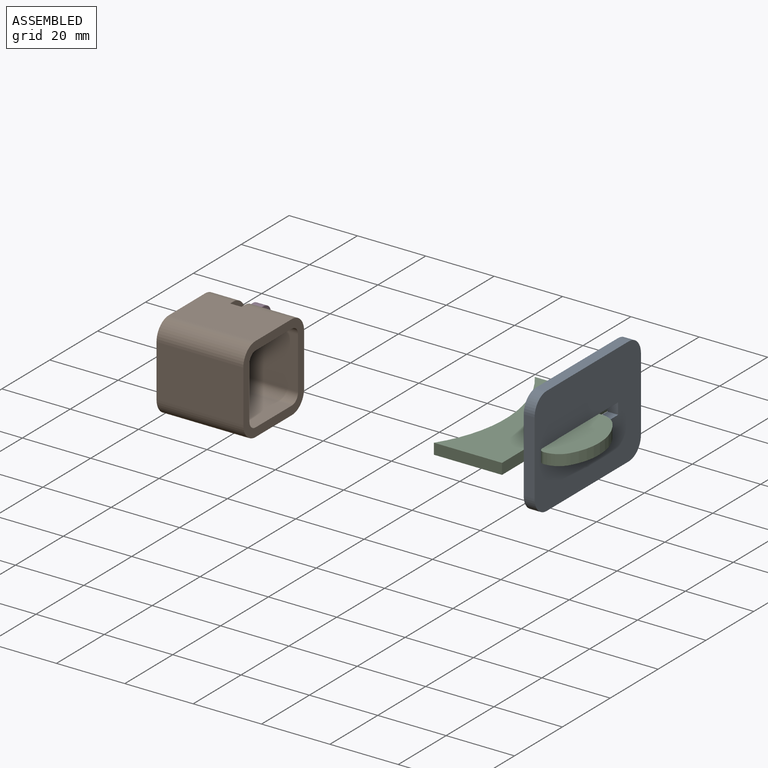
[diagram: assembled view]
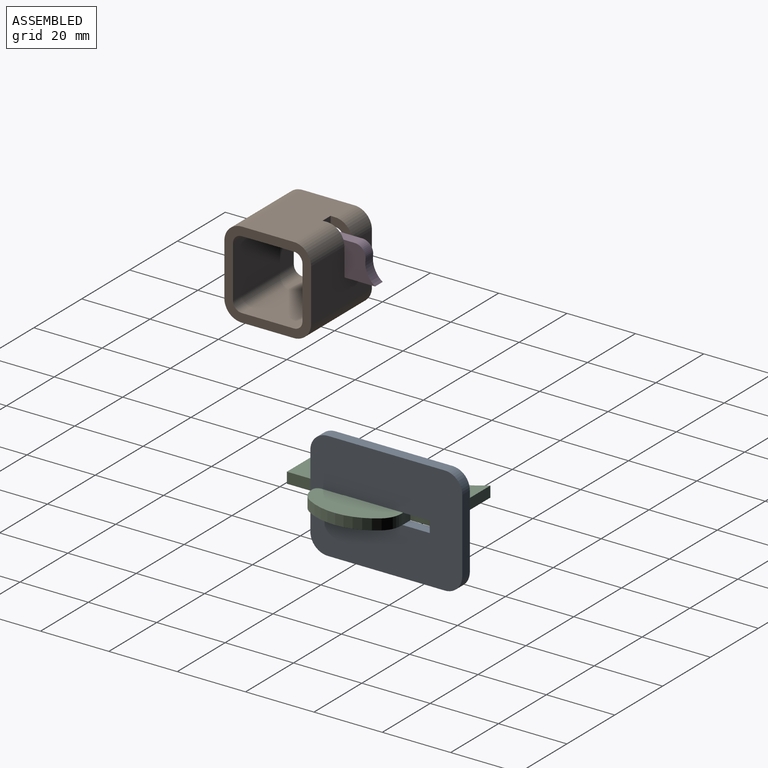
[diagram: assembled view, second angle]
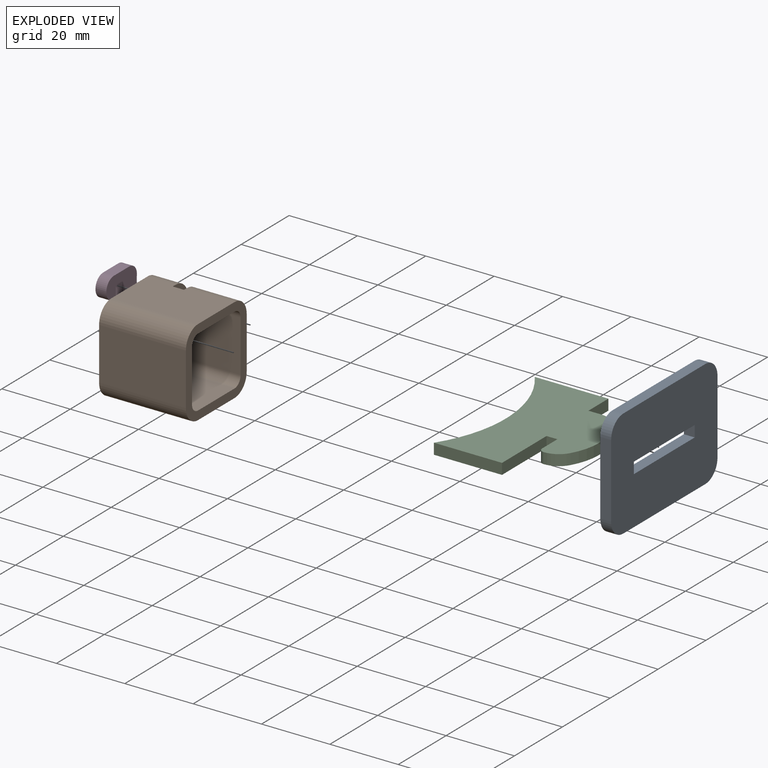
[diagram: exploded view]
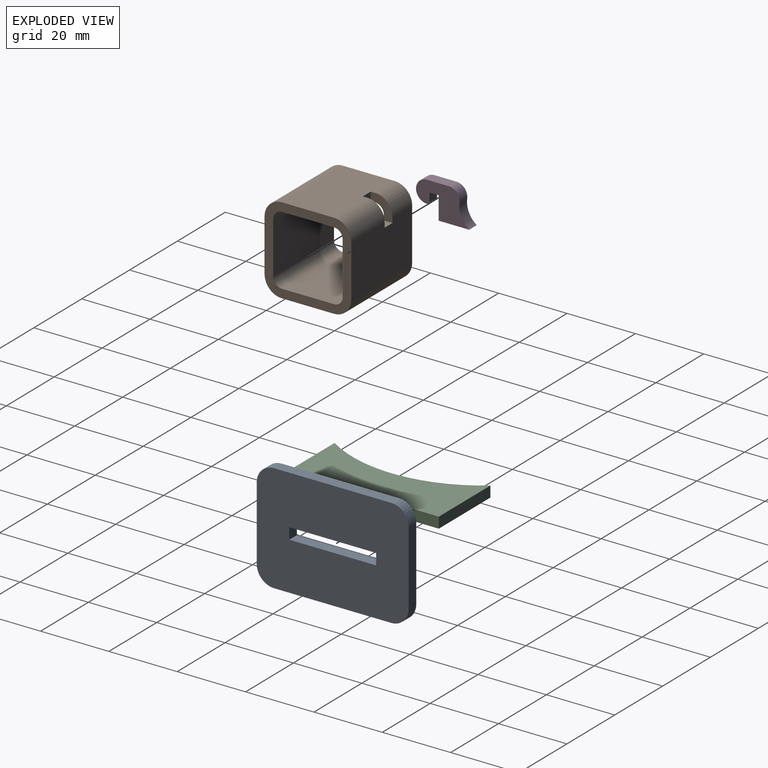
[diagram: exploded view, second angle]
ASSEMBLY  parts=4 mates=2
PART A: 14 faces, bbox 3.2x44.5x31.8 mm
  f0: plane 34.29x3.18mm, normal (0,0,-1), area 108.9mm2, adj f8,f9,f10,f13
  f1: plane 21.59x3.18mm, normal (0,1,0), area 68.5mm2, adj f8,f9,f10,f11
  f2: plane 34.29x3.18mm, normal (0,0,1), area 108.9mm2, adj f8,f9,f11,f12
  f3: plane 3.3x3.18mm, normal (0,-1,0), area 10.5mm2, adj f4,f6,f8,f9
  f4: plane 25.4x3.18mm, normal (0,0,1), area 80.6mm2, adj f3,f5,f8,f9
  f5: plane 3.3x3.18mm, normal (0,1,0), area 10.5mm2, adj f4,f6,f8,f9
  f6: plane 25.4x3.18mm, normal (0,0,-1), area 80.6mm2, adj f3,f5,f8,f9
  f7: plane 21.59x3.18mm, normal (0,-1,0), area 68.5mm2, adj f8,f9,f12,f13
  f8: plane 44.45x31.75mm, normal (1,0,0), area 1305.3mm2, adj f0,f1,f2,f3,f4,f5,f6,f7
  f9: plane 44.45x31.75mm, normal (-1,0,0), area 1305.3mm2, adj f0,f1,f2,f3,f4,f5,f6,f7
  f10: cylinder r=5.08mm len=5.08mm, axis (1,0,0), area 25.3mm2, adj f0,f1,f8,f9
  f11: cylinder r=5.08mm len=5.08mm, axis (-1,0,0), area 25.3mm2, adj f1,f2,f8,f9
  f12: cylinder r=5.08mm len=5.08mm, axis (1,0,0), area 25.3mm2, adj f2,f7,f8,f9
  f13: cylinder r=5.08mm len=5.08mm, axis (-1,0,0), area 25.3mm2, adj f0,f7,f8,f9
PART B: 24 faces, bbox 25.4x25.4x25.4 mm
  f0: plane 25.4x15.24mm, normal (1,0,0), area 382.9mm2, adj f5,f10,f11,f16,f17,f20,f22,f23
  f1: plane 25.4x15.24mm, normal (0,-1,0), area 382.1mm2, adj f5,f10,f11,f17,f18,f21,f22,f23
  f2: plane 25.4x15.24mm, normal (-1,0,0), area 382.9mm2, adj f4,f10,f11,f12,f15,f20,f22,f23
  f3: plane 25.4x15.24mm, normal (0,1,0), area 382.1mm2, adj f4,f10,f11,f14,f15,f21,f22,f23
  f4: cylinder r=5.08mm len=13.88mm, axis (0,0,-1), area 110.8mm2, adj f2,f3,f10,f22
  f5: cylinder r=2.54mm len=13.88mm, axis (0,0,1), area 55.4mm2, adj f0,f1,f10,f22
  f6: plane 25.4x15.24mm, normal (0,1,0), area 387.1mm2, adj f10,f11,f16,f19
  f7: plane 25.4x15.24mm, normal (0,-1,0), area 387.1mm2, adj f10,f11,f12,f13
  f8: plane 25.4x15.24mm, normal (1,0,0), area 387.1mm2, adj f10,f11,f13,f14
  f9: plane 25.4x15.24mm, normal (-1,0,0), area 387.1mm2, adj f10,f11,f18,f19
  f10: plane 25.4x25.4mm, normal (0,0,1), area 215.6mm2, adj f0,f1,f2,f3,f4,f5,f6,f7
  f11: plane 25.4x25.4mm, normal (0,0,-1), area 215.6mm2, adj f0,f1,f2,f3,f6,f7,f8,f9
  f12: cylinder r=5.08mm len=25.4mm, axis (0,0,1), area 202.7mm2, adj f2,f7,f10,f11
  f13: cylinder r=5.08mm len=25.4mm, axis (0,0,-1), area 202.7mm2, adj f7,f8,f10,f11
  f14: cylinder r=5.08mm len=25.4mm, axis (0,0,1), area 202.7mm2, adj f3,f8,f10,f11
  f15: cylinder r=5.08mm len=8.21mm, axis (0,0,-1), area 65.5mm2, adj f2,f3,f11,f23
  f16: cylinder r=2.54mm len=25.4mm, axis (0,0,-1), area 101.3mm2, adj f0,f6,f10,f11
  f17: cylinder r=2.54mm len=8.21mm, axis (0,0,1), area 32.8mm2, adj f0,f1,f11,f23
  f18: cylinder r=2.54mm len=25.4mm, axis (0,0,-1), area 101.3mm2, adj f1,f9,f10,f11
  f19: cylinder r=2.54mm len=25.4mm, axis (0,0,1), area 101.3mm2, adj f6,f9,f10,f11
  f20: plane 3.3x2.54mm, normal (0,1,0), area 8.4mm2, adj f0,f2,f22,f23
  f21: plane 3.3x2.54mm, normal (-1,0,0), area 8.4mm2, adj f1,f3,f22,f23
  f22: plane 6.6x6.35mm, normal (0,0,-1), area 22.3mm2, adj f0,f1,f2,f3,f4,f5,f20,f21
  f23: plane 6.6x6.35mm, normal (0,0,1), area 22.3mm2, adj f0,f1,f2,f3,f15,f17,f20,f21
PART C: 15 faces, bbox 34.1x44.5x3.2 mm
  f0: plane 8.32x3.18mm, normal (1,0,0), area 26.4mm2, adj f1,f12,f13,f14
  f1: plane 21.55x3.18mm, normal (0,1,0), area 68.4mm2, adj f0,f2,f13,f14
  f2: cylinder r=38.56mm len=44.45mm, axis (0,0,-1), area 150.5mm2, adj f1,f3,f13,f14
  f3: plane 19.93x3.18mm, normal (0,-1,0), area 63.3mm2, adj f2,f4,f13,f14
  f4: plane 18.6x3.18mm, normal (1,0,0), area 59.1mm2, adj f3,f5,f13,f14
  f5: plane 3.18x3.18mm, normal (0,-1,0), area 10.1mm2, adj f4,f6,f13,f14
  f6: plane 6.35x3.18mm, normal (-1,0,0), area 20.2mm2, adj f5,f7,f13,f14
  f7: cylinder r=1.52mm len=3.18mm, axis (0,0,-1), area 7.6mm2, adj f6,f8,f13,f14
  f8: plane 3.18x0.03mm, normal (0,-1,0), area 0.1mm2, adj f7,f9,f13,f14
  f9: cylinder r=6.35mm len=5.5mm, axis (0,0,-1), area 21.1mm2, adj f8,f10,f13,f14
  f10: cylinder r=17.58mm len=19.88mm, axis (0,0,-1), area 67.3mm2, adj f9,f11,f13,f14
  f11: cylinder r=6.35mm len=4.93mm, axis (0,0,-1), area 17.9mm2, adj f10,f12,f13,f14
  f12: plane 3.72x3.18mm, normal (0,1,0), area 11.8mm2, adj f0,f11,f13,f14
  f13: plane 44.45x34.14mm, normal (0,0,1), area 956.7mm2, adj f0,f1,f2,f3,f4,f5,f6,f7
  f14: plane 44.45x34.14mm, normal (0,0,-1), area 956.7mm2, adj f0,f1,f2,f3,f4,f5,f6,f7
PART D: 11 faces, bbox 15.6x9.9x3.2 mm
  f0: plane 3.18x2.67mm, normal (0,-1,0), area 8.5mm2, adj f1,f8,f9,f10
  f1: plane 3.18x2.41mm, normal (-1,0,0), area 7.7mm2, adj f0,f2,f9,f10
  f2: cylinder r=0.76mm len=3.18mm, axis (0,0,-1), area 3.8mm2, adj f1,f3,f9,f10
  f3: cylinder r=3.17mm len=6.35mm, axis (0,0,-1), area 31.7mm2, adj f2,f4,f9,f10
  f4: plane 6.42x3.18mm, normal (0,1,0), area 20.4mm2, adj f3,f5,f9,f10
  f5: cylinder r=3.17mm len=3.59mm, axis (0,0,-1), area 17.2mm2, adj f4,f6,f9,f10
  f6: cylinder r=6.62mm len=6.32mm, axis (0,0,-1), area 23.1mm2, adj f5,f7,f9,f10
  f7: plane 8.95x3.18mm, normal (0,-1,0), area 28.4mm2, adj f6,f8,f9,f10
  f8: plane 6.74x3.18mm, normal (1,0,0), area 21.4mm2, adj f0,f7,f9,f10
  f9: plane 15.55x9.92mm, normal (0,0,1), area 92.2mm2, adj f0,f1,f2,f3,f4,f5,f6,f7
  f10: plane 15.55x9.92mm, normal (0,0,-1), area 92.2mm2, adj f0,f1,f2,f3,f4,f5,f6,f7
PLACE A t=(-13.9,-2.99,-16.24)mm
PLACE B rot(axis=(0,1,0),90deg) t=(-81.49,-10.68,85.04)mm
PLACE C t=(10.34,-15.02,26.35)mm
PLACE D rot(axis=(0.58,-0.58,-0.58),120deg) t=(-70.04,-52.29,101.12)mm
MATE fastened C.f5 <-> A.f5  axis (0,-1,0) through (-12.32,-1.05,27.94)mm
MATE fastened B.f3 <-> D.f8  axis (0,1,0) through (-71.62,-42.1,60.2)mm
